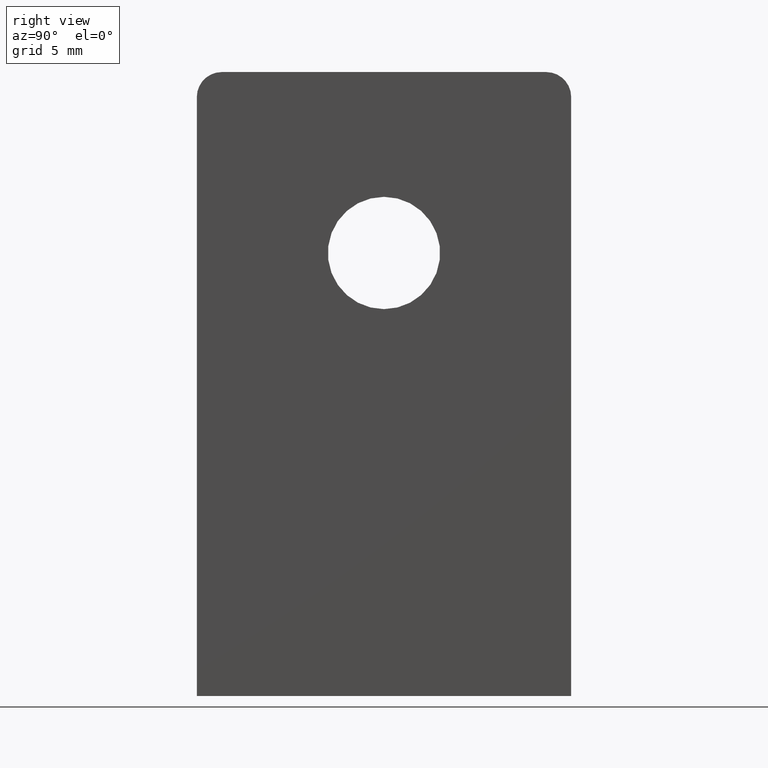
[diagram: clean part render]
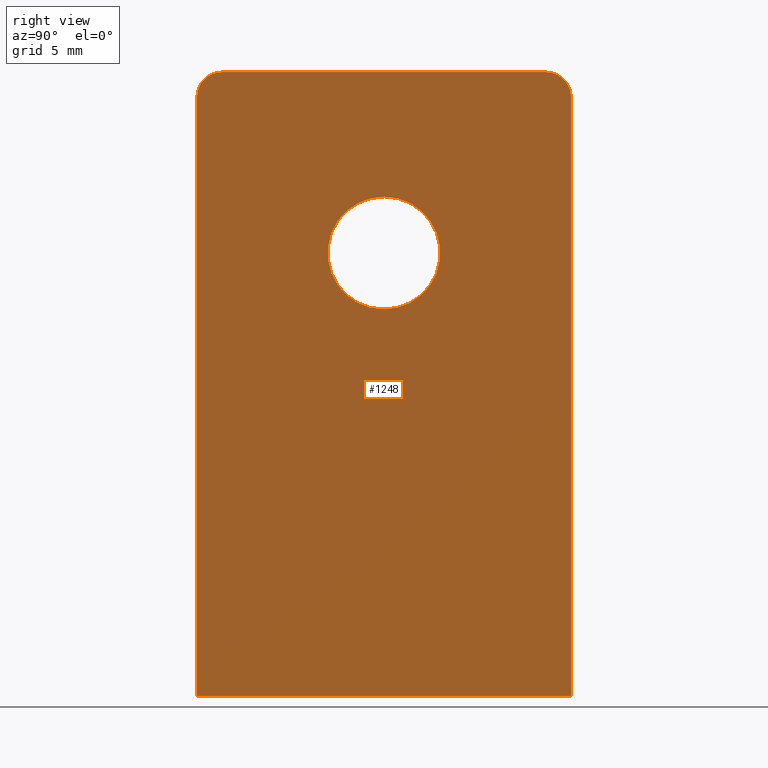
[diagram: same view with one face highlighted and labeled with its STEP entity id]
A machine part, right view. The second image highlights one B-rep face of the part: STEP entity #1248.
In plain terms, the highlighted planar face has unit normal (-1, 0, -0).
Its self-contained STEP definition (entity closure, byte-faithful):
#29 = EDGE_CURVE ( 'NONE', #957, #3463, #2107, .T. ) ;
#169 = VECTOR ( 'NONE', #1118, 1000.000000000000000 ) ;
#290 = EDGE_CURVE ( 'NONE', #7152, #7658, #7261, .T. ) ;
#319 = FACE_BOUND ( 'NONE', #9004, .T. ) ;
#447 = CARTESIAN_POINT ( 'NONE',  ( 3.000000000000000000, 5.510910596163087600E-016, 40.00000000000000000 ) ) ;
#483 = VERTEX_POINT ( 'NONE', #4695 ) ;
#519 = CIRCLE ( 'NONE', #4534, 4.500000000000000900 ) ;
#957 = VERTEX_POINT ( 'NONE', #1884 ) ;
#1118 = DIRECTION ( 'NONE',  ( -0.0000000000000000000, 1.000000000000000000, -0.0000000000000000000 ) ) ;
#1134 = CARTESIAN_POINT ( 'NONE',  ( 3.000000000000000000, 15.00000000000000000, 49.99999999999997200 ) ) ;
#1166 = DIRECTION ( 'NONE',  ( -0.0000000000000000000, 0.0000000000000000000, 1.000000000000000000 ) ) ;
#1248 = ADVANCED_FACE ( 'NONE', ( #319, #1334 ), #2575, .F. ) ;
#1273 = AXIS2_PLACEMENT_3D ( 'NONE', #5094, #5202, #6735 ) ;
#1334 = FACE_OUTER_BOUND ( 'NONE', #8511, .T. ) ;
#1681 = VERTEX_POINT ( 'NONE', #3397 ) ;
#1884 = CARTESIAN_POINT ( 'NONE',  ( 3.000000000000000000, 12.99999999999999800, 49.99999999999997200 ) ) ;
#1953 = CARTESIAN_POINT ( 'NONE',  ( 3.000000000000000000, 15.00000000000000000, -4.286263797015736500E-015 ) ) ;
#1987 = AXIS2_PLACEMENT_3D ( 'NONE', #9163, #6773, #8390 ) ;
#2107 = LINE ( 'NONE', #2865, #10347 ) ;
#2459 = EDGE_CURVE ( 'NONE', #3463, #7152, #3464, .T. ) ;
#2575 = PLANE ( 'NONE',  #4923 ) ;
#2865 = CARTESIAN_POINT ( 'NONE',  ( 3.000000000000000000, -15.00000000000000000, 49.99999999999997200 ) ) ;
#3122 = AXIS2_PLACEMENT_3D ( 'NONE', #6336, #5395, #7061 ) ;
#3382 = CARTESIAN_POINT ( 'NONE',  ( 3.000000000000000000, 0.0000000000000000000, 0.0000000000000000000 ) ) ;
#3397 = CARTESIAN_POINT ( 'NONE',  ( 3.000000000000000000, 0.0000000000000000000, 30.99999999999999600 ) ) ;
#3463 = VERTEX_POINT ( 'NONE', #9200 ) ;
#3464 = CIRCLE ( 'NONE', #1273, 2.000000000000001800 ) ;
#3564 = DIRECTION ( 'NONE',  ( -0.0000000000000000000, -0.0000000000000000000, 1.000000000000000000 ) ) ;
#3607 = CARTESIAN_POINT ( 'NONE',  ( 3.000000000000000000, -15.00000000000000000, -4.286263797015736500E-015 ) ) ;
#3794 = DIRECTION ( 'NONE',  ( -0.0000000000000000000, -1.000000000000000000, -0.0000000000000000000 ) ) ;
#4372 = EDGE_CURVE ( 'NONE', #7658, #483, #4590, .T. ) ;
#4519 = ORIENTED_EDGE ( 'NONE', *, *, #5302, .F. ) ;
#4534 = AXIS2_PLACEMENT_3D ( 'NONE', #9333, #7879, #5350 ) ;
#4590 = LINE ( 'NONE', #1953, #169 ) ;
#4660 = VERTEX_POINT ( 'NONE', #10020 ) ;
#4695 = CARTESIAN_POINT ( 'NONE',  ( 3.000000000000000000, 15.00000000000000000, -4.286263797015736500E-015 ) ) ;
#4894 = ORIENTED_EDGE ( 'NONE', *, *, #10264, .F. ) ;
#4923 = AXIS2_PLACEMENT_3D ( 'NONE', #3382, #9754, #1166 ) ;
#5094 = CARTESIAN_POINT ( 'NONE',  ( 3.000000000000000000, -13.00000000000000000, 47.99999999999997200 ) ) ;
#5095 = EDGE_CURVE ( 'NONE', #483, #4660, #10048, .T. ) ;
#5202 = DIRECTION ( 'NONE',  ( 1.000000000000000000, 0.0000000000000000000, 0.0000000000000000000 ) ) ;
#5302 = EDGE_CURVE ( 'NONE', #1681, #8805, #519, .T. ) ;
#5350 = DIRECTION ( 'NONE',  ( 0.0000000000000000000, 0.0000000000000000000, -1.000000000000000000 ) ) ;
#5360 = ORIENTED_EDGE ( 'NONE', *, *, #5095, .T. ) ;
#5395 = DIRECTION ( 'NONE',  ( 1.000000000000000000, 0.0000000000000000000, 0.0000000000000000000 ) ) ;
#5799 = ORIENTED_EDGE ( 'NONE', *, *, #2459, .T. ) ;
#5808 = ORIENTED_EDGE ( 'NONE', *, *, #290, .T. ) ;
#6009 = VECTOR ( 'NONE', #9950, 1000.000000000000000 ) ;
#6237 = ORIENTED_EDGE ( 'NONE', *, *, #29, .T. ) ;
#6336 = CARTESIAN_POINT ( 'NONE',  ( 3.000000000000000000, 0.0000000000000000000, 35.50000000000000000 ) ) ;
#6735 = DIRECTION ( 'NONE',  ( 0.0000000000000000000, 0.0000000000000000000, 1.000000000000000000 ) ) ;
#6765 = CIRCLE ( 'NONE', #3122, 4.500000000000000900 ) ;
#6773 = DIRECTION ( 'NONE',  ( 1.000000000000000000, 0.0000000000000000000, 0.0000000000000000000 ) ) ;
#6778 = CIRCLE ( 'NONE', #1987, 2.000000000000001800 ) ;
#7061 = DIRECTION ( 'NONE',  ( 0.0000000000000000000, 0.0000000000000000000, -1.000000000000000000 ) ) ;
#7152 = VERTEX_POINT ( 'NONE', #9714 ) ;
#7241 = ORIENTED_EDGE ( 'NONE', *, *, #4372, .T. ) ;
#7261 = LINE ( 'NONE', #3607, #6009 ) ;
#7658 = VERTEX_POINT ( 'NONE', #8114 ) ;
#7879 = DIRECTION ( 'NONE',  ( 1.000000000000000000, 0.0000000000000000000, 0.0000000000000000000 ) ) ;
#8114 = CARTESIAN_POINT ( 'NONE',  ( 3.000000000000000000, -15.00000000000000000, -4.286263797015736500E-015 ) ) ;
#8390 = DIRECTION ( 'NONE',  ( 0.0000000000000000000, 0.0000000000000000000, 1.000000000000000000 ) ) ;
#8425 = ORIENTED_EDGE ( 'NONE', *, *, #9685, .T. ) ;
#8511 = EDGE_LOOP ( 'NONE', ( #6237, #5799, #5808, #7241, #5360, #8425 ) ) ;
#8805 = VERTEX_POINT ( 'NONE', #447 ) ;
#9004 = EDGE_LOOP ( 'NONE', ( #4519, #4894 ) ) ;
#9163 = CARTESIAN_POINT ( 'NONE',  ( 3.000000000000000000, 12.99999999999999800, 47.99999999999997200 ) ) ;
#9200 = CARTESIAN_POINT ( 'NONE',  ( 3.000000000000000000, -13.00000000000000000, 49.99999999999997200 ) ) ;
#9333 = CARTESIAN_POINT ( 'NONE',  ( 3.000000000000000000, 0.0000000000000000000, 35.50000000000000000 ) ) ;
#9537 = VECTOR ( 'NONE', #3564, 1000.000000000000000 ) ;
#9685 = EDGE_CURVE ( 'NONE', #4660, #957, #6778, .T. ) ;
#9714 = CARTESIAN_POINT ( 'NONE',  ( 3.000000000000000000, -15.00000000000000000, 47.99999999999997200 ) ) ;
#9754 = DIRECTION ( 'NONE',  ( -1.000000000000000000, 0.0000000000000000000, -0.0000000000000000000 ) ) ;
#9950 = DIRECTION ( 'NONE',  ( -0.0000000000000000000, -0.0000000000000000000, -1.000000000000000000 ) ) ;
#10020 = CARTESIAN_POINT ( 'NONE',  ( 3.000000000000000000, 15.00000000000000000, 47.99999999999997200 ) ) ;
#10048 = LINE ( 'NONE', #1134, #9537 ) ;
#10264 = EDGE_CURVE ( 'NONE', #8805, #1681, #6765, .T. ) ;
#10347 = VECTOR ( 'NONE', #3794, 1000.000000000000000 ) ;